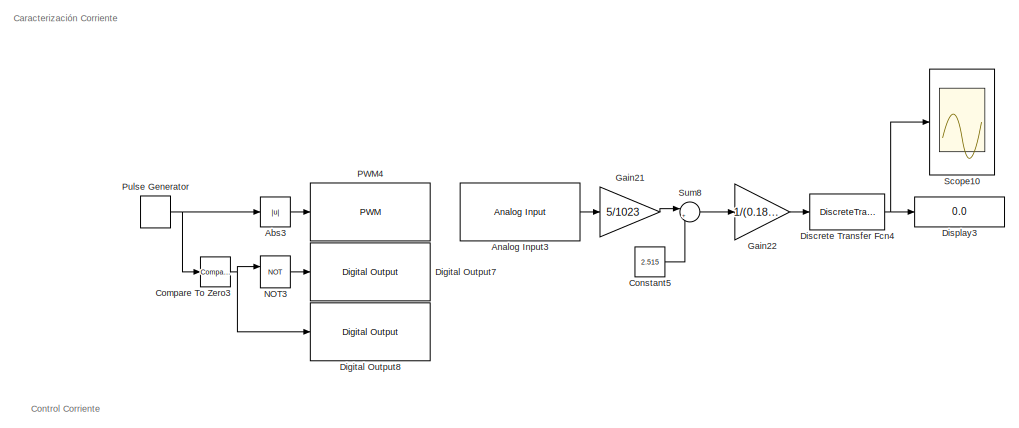
[diagram: root canvas - part 1/5, top left region]
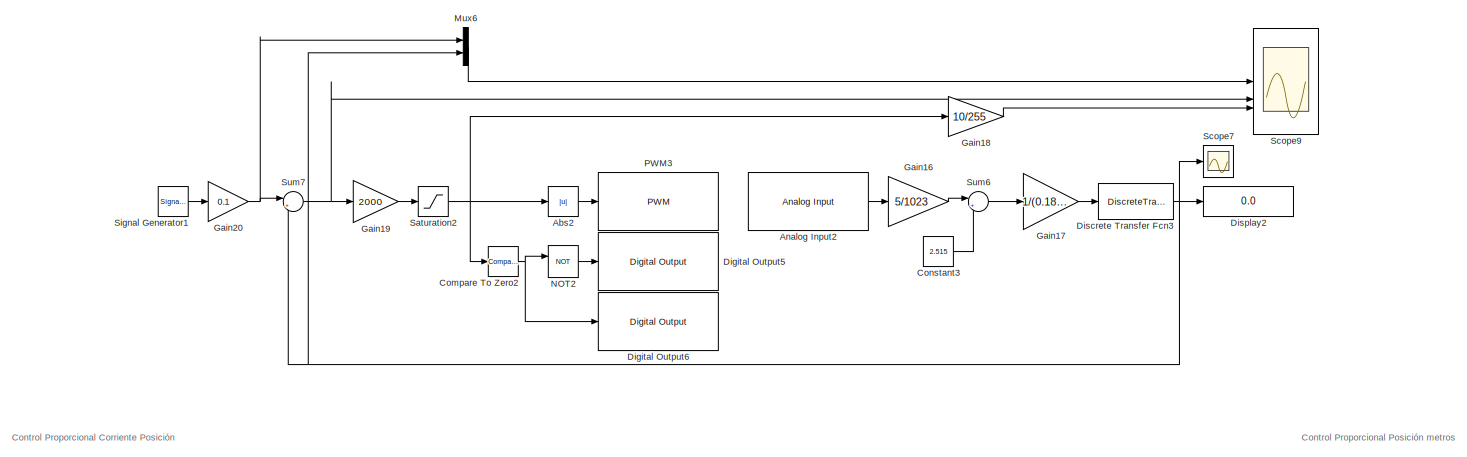
[diagram: root canvas - part 2/5, top left region]
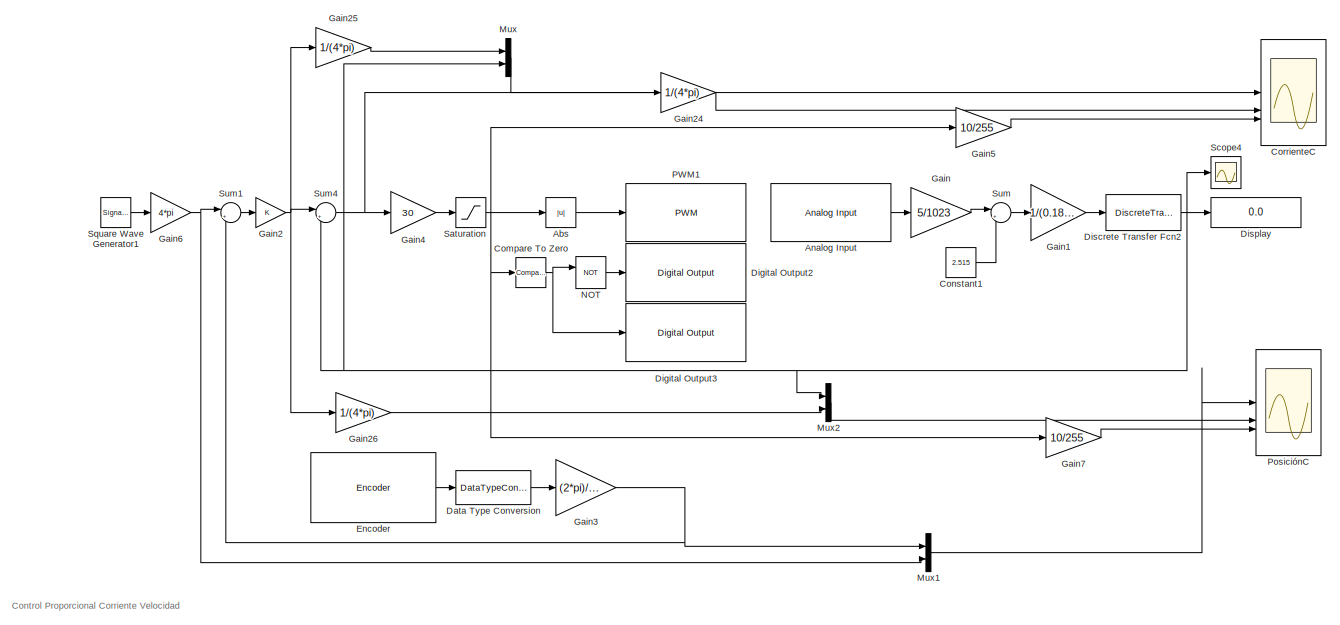
[diagram: root canvas - part 3/5, middle left region]
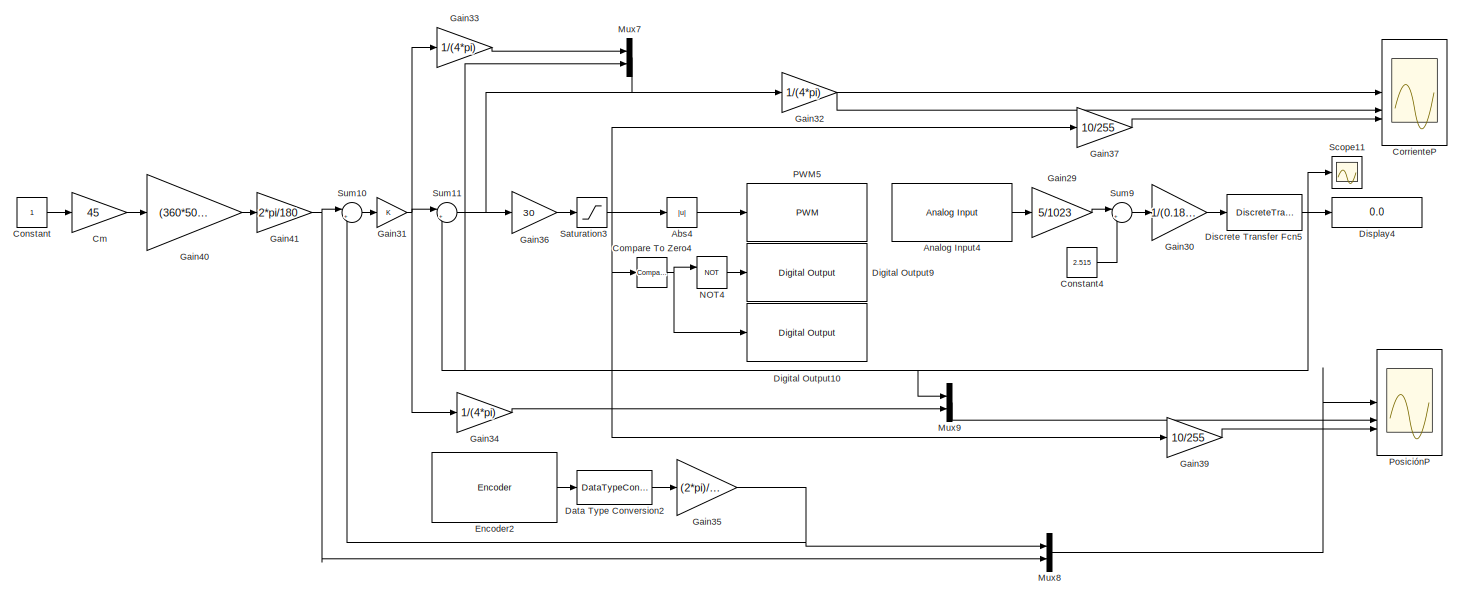
[diagram: root canvas - part 4/5, middle right region]
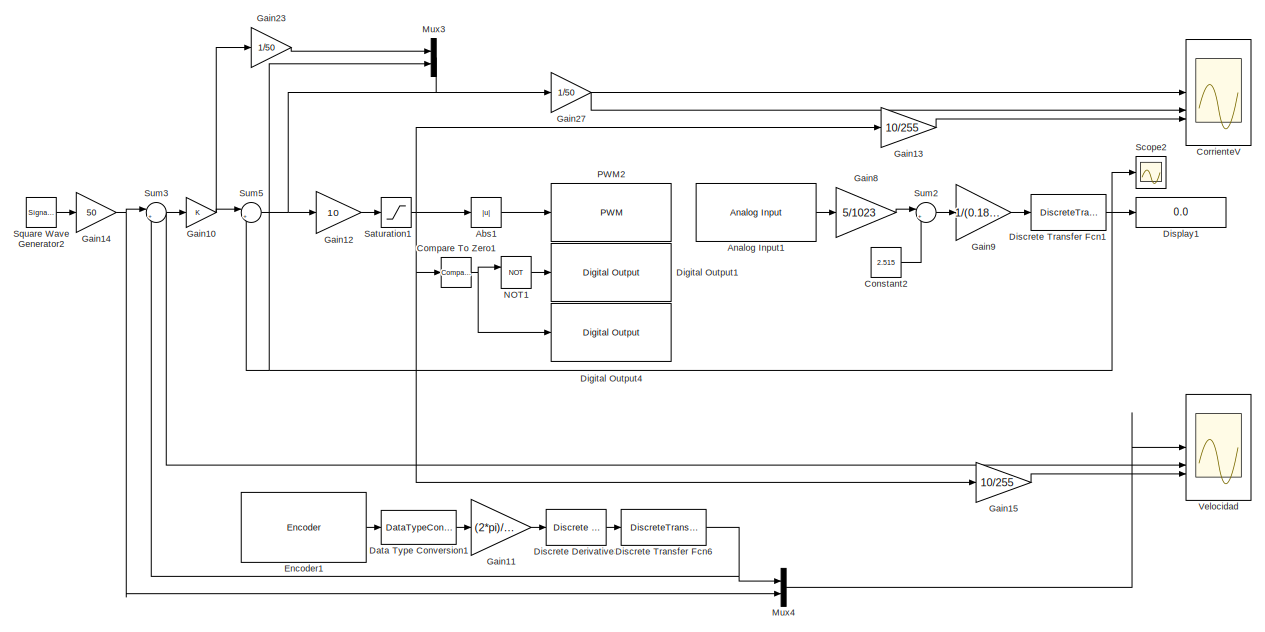
[diagram: root canvas - part 5/5, bottom left region]
MODEL slx_dbfee14ff2af
KIND model
CONFIG AbsTol = auto
CONFIG EnableMultiTasking = on
CONFIG FixedStep = 0.001
CONFIG MaxStep = auto
CONFIG MinStep = auto
CONFIG RelTol = 1e-3
CONFIG SampleTimeConstraint = Unconstrained
CONFIG SolverName = FixedStepDiscrete
CONFIG StartTime = 0.0
CONFIG StopTime = inf
BLOCK [Abs] Abs
  Commented = on
  SaturateOnIntegerOverflow = off
BLOCK [Abs] Abs1
  Commented = on
  SaturateOnIntegerOverflow = off
BLOCK [Abs] Abs2
  Commented = on
  SaturateOnIntegerOverflow = off
BLOCK [Abs] Abs3
  Commented = on
  SaturateOnIntegerOverflow = off
BLOCK [Abs] Abs4
  SaturateOnIntegerOverflow = off
BLOCK [Reference] Analog Input  REF=arduinolib/Analog Input
  Commented = on
  SourceBlock = arduinolib/Analog Input
  SourceType = Arduino Analog Input
BLOCK [Reference] Analog Input1  REF=arduinolib/Analog Input
  Commented = on
  SourceBlock = arduinolib/Analog Input
  SourceType = Arduino Analog Input
BLOCK [Reference] Analog Input2  REF=arduinolib/Analog Input
  Commented = on
  SourceBlock = arduinolib/Analog Input
  SourceType = Arduino Analog Input
BLOCK [Reference] Analog Input3  REF=arduinolib/Analog Input
  Commented = on
  SourceBlock = arduinolib/Analog Input
  SourceType = Arduino Analog Input
BLOCK [Reference] Analog Input4  REF=arduinolib/Analog Input
  SourceBlock = arduinolib/Analog Input
  SourceType = Arduino Analog Input
BLOCK [Gain] Cm
  Gain = 45
BLOCK [Reference] Compare To Zero  REF=simulink/Logic and Bit
Operations/Compare
To Zero
  Commented = on
  SourceBlock = simulink/Logic and Bit\nOperations/Compare\nTo Zero
  SourceType = Compare To Zero
BLOCK [Reference] Compare To Zero1  REF=simulink/Logic and Bit
Operations/Compare
To Zero
  Commented = on
  SourceBlock = simulink/Logic and Bit\nOperations/Compare\nTo Zero
  SourceType = Compare To Zero
BLOCK [Reference] Compare To Zero2  REF=simulink/Logic and Bit
Operations/Compare
To Zero
  Commented = on
  SourceBlock = simulink/Logic and Bit\nOperations/Compare\nTo Zero
  SourceType = Compare To Zero
BLOCK [Reference] Compare To Zero3  REF=simulink/Logic and Bit
Operations/Compare
To Zero
  Commented = on
  SourceBlock = simulink/Logic and Bit\nOperations/Compare\nTo Zero
  SourceType = Compare To Zero
BLOCK [Reference] Compare To Zero4  REF=simulink/Logic and Bit
Operations/Compare
To Zero
  SourceBlock = simulink/Logic and Bit\nOperations/Compare\nTo Zero
  SourceType = Compare To Zero
BLOCK [Constant] Constant
BLOCK [Constant] Constant1
  Commented = on
  Value = 2.515
BLOCK [Constant] Constant2
  Commented = on
  Value = 2.515
BLOCK [Constant] Constant3
  Commented = on
  Value = 2.515
BLOCK [Constant] Constant4
  Value = 2.515
BLOCK [Constant] Constant5
  Commented = on
  Value = 2.515
BLOCK [Scope] CorrienteC
  Commented = on
  Floating = off
  NumInputPorts = 3
  ScopeSpecificationString = Simulink.scopes.TimeScopeBlockCfg('CurrentConfiguration', extmgr.ConfigurationSet(extmgr.Configuration('Core','General UI',true,'FigureColor',[1 1 1]),extmgr.Configuration('Core','Source UI',true),extmgr.Configuration('Sources','WiredSimulink',true,'DataLoggingVariableName','ScopeData2','SampleTime','1e-3'),extmgr.Configuration('Visuals','Time Domain',true,'SerializedDisplays',{struct('MinYLimReal...<+3094ch>
BLOCK [Scope] CorrienteP
  Floating = off
  NumInputPorts = 3
  ScopeSpecificationString = Simulink.scopes.TimeScopeBlockCfg('CurrentConfiguration', extmgr.ConfigurationSet(extmgr.Configuration('Core','General UI',true,'FigureColor',[1 1 1]),extmgr.Configuration('Core','Source UI',true),extmgr.Configuration('Sources','WiredSimulink',true,'DataLoggingVariableName','ScopeData2','SampleTime','1e-3'),extmgr.Configuration('Visuals','Time Domain',true,'SerializedDisplays',{struct('MinYLimReal...<+3094ch>
BLOCK [Scope] CorrienteV
  Commented = on
  Floating = off
  NumInputPorts = 3
  ScopeSpecificationString = Simulink.scopes.TimeScopeBlockCfg('CurrentConfiguration', extmgr.ConfigurationSet(extmgr.Configuration('Core','General UI',true,'FigureColor',[1 1 1]),extmgr.Configuration('Core','Source UI',true),extmgr.Configuration('Sources','WiredSimulink',true,'DataLoggingVariableName','ScopeData3','SampleTime','1e-3'),extmgr.Configuration('Visuals','Time Domain',true,'SerializedDisplays',{struct('MinYLimReal...<+3442ch>
BLOCK [DataTypeConversion] Data Type Conversion
  Commented = on
  RndMeth = Floor
  SaturateOnIntegerOverflow = off
BLOCK [DataTypeConversion] Data Type Conversion1
  Commented = on
  RndMeth = Floor
  SaturateOnIntegerOverflow = off
BLOCK [DataTypeConversion] Data Type Conversion2
  RndMeth = Floor
  SaturateOnIntegerOverflow = off
BLOCK [Reference] Digital Output1  REF=arduinolib/Digital Output
  Commented = on
  SourceBlock = arduinolib/Digital Output
  SourceType = Arduino Digital Output
BLOCK [Reference] Digital Output10  REF=arduinolib/Digital Output
  SourceBlock = arduinolib/Digital Output
  SourceType = Arduino Digital Output
BLOCK [Reference] Digital Output2  REF=arduinolib/Digital Output
  Commented = on
  SourceBlock = arduinolib/Digital Output
  SourceType = Arduino Digital Output
BLOCK [Reference] Digital Output3  REF=arduinolib/Digital Output
  Commented = on
  SourceBlock = arduinolib/Digital Output
  SourceType = Arduino Digital Output
BLOCK [Reference] Digital Output4  REF=arduinolib/Digital Output
  Commented = on
  SourceBlock = arduinolib/Digital Output
  SourceType = Arduino Digital Output
BLOCK [Reference] Digital Output5  REF=arduinolib/Digital Output
  Commented = on
  SourceBlock = arduinolib/Digital Output
  SourceType = Arduino Digital Output
BLOCK [Reference] Digital Output6  REF=arduinolib/Digital Output
  Commented = on
  SourceBlock = arduinolib/Digital Output
  SourceType = Arduino Digital Output
BLOCK [Reference] Digital Output7  REF=arduinolib/Digital Output
  Commented = on
  SourceBlock = arduinolib/Digital Output
  SourceType = Arduino Digital Output
BLOCK [Reference] Digital Output8  REF=arduinolib/Digital Output
  Commented = on
  SourceBlock = arduinolib/Digital Output
  SourceType = Arduino Digital Output
BLOCK [Reference] Digital Output9  REF=arduinolib/Digital Output
  SourceBlock = arduinolib/Digital Output
  SourceType = Arduino Digital Output
BLOCK [Reference] Discrete Derivative3  REF=simulink/Discrete/Discrete Derivative
  Commented = on
  SourceBlock = simulink/Discrete/Discrete Derivative
  SourceType = Discrete Derivative
BLOCK [DiscreteTransferFcn] Discrete Transfer Fcn1
  Commented = on
  Denominator = [1 -0.9937]
  InputPortMap = u0
  Numerator = [0.006263]
BLOCK [DiscreteTransferFcn] Discrete Transfer Fcn2
  Commented = on
  Denominator = [1 -0.9937]
  InputPortMap = u0
  Numerator = [0.006263]
BLOCK [DiscreteTransferFcn] Discrete Transfer Fcn3
  Commented = on
  Denominator = [1 -0.9937]
  InputPortMap = u0
  Numerator = [0.006263]
BLOCK [DiscreteTransferFcn] Discrete Transfer Fcn4
  Commented = on
  Denominator = [1 -0.9937]
  InputPortMap = u0
  Numerator = [0.006263]
BLOCK [DiscreteTransferFcn] Discrete Transfer Fcn5
  Denominator = [1 -0.9937]
  InputPortMap = u0
  Numerator = [0.006263]
BLOCK [DiscreteTransferFcn] Discrete Transfer Fcn6
  Commented = on
  Denominator = [1 -0.997]
  InputPortMap = u0
  Numerator = [0.003137]
BLOCK [Display] Display
  Commented = on
  Decimation = 1
BLOCK [Display] Display1
  Commented = on
  Decimation = 1
BLOCK [Display] Display2
  Commented = on
  Decimation = 1
BLOCK [Display] Display3
  Commented = on
  Decimation = 1
BLOCK [Display] Display4
  Decimation = 1
BLOCK [Reference] Encoder  REF=arduinosensorlib/Encoder
  Commented = on
  SourceBlock = arduinosensorlib/Encoder
  SourceType = Arduino Rotary Encoder
BLOCK [Reference] Encoder1  REF=arduinosensorlib/Encoder
  Commented = on
  SourceBlock = arduinosensorlib/Encoder
  SourceType = Arduino Rotary Encoder
BLOCK [Reference] Encoder2  REF=arduinosensorlib/Encoder
  SourceBlock = arduinosensorlib/Encoder
  SourceType = Arduino Rotary Encoder
BLOCK [Gain] Gain
  Commented = on
  Gain = 5/1023
BLOCK [Gain] Gain1
  Commented = on
  Gain = 1/(0.185)
BLOCK [Gain] Gain10
  Commented = on
BLOCK [Gain] Gain11
  Commented = on
  Gain = (2*pi)/102
BLOCK [Gain] Gain12
  Commented = on
  Gain = 10
BLOCK [Gain] Gain13
  Commented = on
  Gain = 10/255
BLOCK [Gain] Gain14
  Commented = on
  Gain = 50
BLOCK [Gain] Gain15
  Commented = on
  Gain = 10/255
BLOCK [Gain] Gain16
  Commented = on
  Gain = 5/1023
BLOCK [Gain] Gain17
  Commented = on
  Gain = 1/(0.185)
BLOCK [Gain] Gain18
  Commented = on
  Gain = 10/255
BLOCK [Gain] Gain19
  Commented = on
  Gain = 2000
BLOCK [Gain] Gain2
  Commented = on
BLOCK [Gain] Gain20
  Commented = on
  Gain = 0.1
BLOCK [Gain] Gain21
  Commented = on
  Gain = 5/1023
BLOCK [Gain] Gain22
  Commented = on
  Gain = 1/(0.185)
BLOCK [Gain] Gain23
  Commented = on
  Gain = 1/50
BLOCK [Gain] Gain24
  Commented = on
  Gain = 1/(4*pi)
BLOCK [Gain] Gain25
  Commented = on
  Gain = 1/(4*pi)
BLOCK [Gain] Gain26
  Commented = on
  Gain = 1/(4*pi)
BLOCK [Gain] Gain27
  Commented = on
  Gain = 1/50
BLOCK [Gain] Gain29
  Gain = 5/1023
BLOCK [Gain] Gain3
  Commented = on
  Gain = (2*pi)/102
BLOCK [Gain] Gain30
  Gain = 1/(0.185)
BLOCK [Gain] Gain31
BLOCK [Gain] Gain32
  Gain = 1/(4*pi)
BLOCK [Gain] Gain33
  Gain = 1/(4*pi)
BLOCK [Gain] Gain34
  Gain = 1/(4*pi)
BLOCK [Gain] Gain35
  Gain = (2*pi)/(102)
BLOCK [Gain] Gain36
  Gain = 30
BLOCK [Gain] Gain37
  Gain = 10/255
BLOCK [Gain] Gain39
  Gain = 10/255
BLOCK [Gain] Gain4
  Commented = on
  Gain = 30
BLOCK [Gain] Gain40
  Gain = (360*50)/(2*pi*0.4*53.5)
BLOCK [Gain] Gain41
  Gain = 2*pi/180
BLOCK [Gain] Gain5
  Commented = on
  Gain = 10/255
BLOCK [Gain] Gain6
  Commented = on
  Gain = 4*pi
BLOCK [Gain] Gain7
  Commented = on
  Gain = 10/255
BLOCK [Gain] Gain8
  Commented = on
  Gain = 5/1023
BLOCK [Gain] Gain9
  Commented = on
  Gain = 1/(0.185)
BLOCK [Mux] Mux
  Commented = on
  DisplayOption = bar
  Inputs = 2
BLOCK [Mux] Mux1
  Commented = on
  DisplayOption = bar
  Inputs = 2
BLOCK [Mux] Mux2
  Commented = on
  DisplayOption = bar
  Inputs = 2
BLOCK [Mux] Mux3
  Commented = on
  DisplayOption = bar
  Inputs = 2
BLOCK [Mux] Mux4
  Commented = on
  DisplayOption = bar
  Inputs = 2
BLOCK [Mux] Mux6
  Commented = on
  DisplayOption = bar
  Inputs = 2
BLOCK [Mux] Mux7
  DisplayOption = bar
  Inputs = 2
BLOCK [Mux] Mux8
  DisplayOption = bar
  Inputs = 2
BLOCK [Mux] Mux9
  DisplayOption = bar
  Inputs = 2
BLOCK [Logic] NOT
  AllPortsSameDT = off
  Commented = on
  IconShape = distinctive
  Operator = NOT
  OutDataTypeStr = boolean
BLOCK [Logic] NOT1
  AllPortsSameDT = off
  Commented = on
  IconShape = distinctive
  Operator = NOT
  OutDataTypeStr = boolean
BLOCK [Logic] NOT2
  AllPortsSameDT = off
  Commented = on
  IconShape = distinctive
  Operator = NOT
  OutDataTypeStr = boolean
BLOCK [Logic] NOT3
  AllPortsSameDT = off
  Commented = on
  IconShape = distinctive
  Operator = NOT
  OutDataTypeStr = boolean
BLOCK [Logic] NOT4
  AllPortsSameDT = off
  IconShape = distinctive
  Operator = NOT
  OutDataTypeStr = boolean
BLOCK [Reference] PWM1  REF=arduinolib/PWM
  Commented = on
  SourceBlock = arduinolib/PWM
  SourceType = Arduino PWM
BLOCK [Reference] PWM2  REF=arduinolib/PWM
  Commented = on
  SourceBlock = arduinolib/PWM
  SourceType = Arduino PWM
BLOCK [Reference] PWM3  REF=arduinolib/PWM
  Commented = on
  SourceBlock = arduinolib/PWM
  SourceType = Arduino PWM
BLOCK [Reference] PWM4  REF=arduinolib/PWM
  Commented = on
  SourceBlock = arduinolib/PWM
  SourceType = Arduino PWM
BLOCK [Reference] PWM5  REF=arduinolib/PWM
  SourceBlock = arduinolib/PWM
  SourceType = Arduino PWM
BLOCK [Scope] PosiciónC
  Commented = on
  Floating = off
  NumInputPorts = 3
  ScopeSpecificationString = Simulink.scopes.TimeScopeBlockCfg('CurrentConfiguration', extmgr.ConfigurationSet(extmgr.Configuration('Core','General UI',true,'FigureColor',[1 1 1]),extmgr.Configuration('Core','Source UI',true),extmgr.Configuration('Sources','WiredSimulink',true,'DataLoggingVariableName','ScopeData1','SampleTime','1e-3'),extmgr.Configuration('Visuals','Time Domain',true,'SerializedDisplays',{struct('MinYLimReal...<+3105ch>
BLOCK [Scope] PosiciónP
  Floating = off
  NumInputPorts = 3
  ScopeSpecificationString = Simulink.scopes.TimeScopeBlockCfg('CurrentConfiguration', extmgr.ConfigurationSet(extmgr.Configuration('Core','General UI',true,'FigureColor',[1 1 1]),extmgr.Configuration('Core','Source UI',true),extmgr.Configuration('Sources','WiredSimulink',true,'DataLoggingVariableName','ScopeData3','SampleTime','1e-3'),extmgr.Configuration('Visuals','Time Domain',true,'SerializedDisplays',{struct('MinYLimReal...<+3144ch>
BLOCK [DiscretePulseGenerator] Pulse Generator
  Amplitude = 255
  Commented = on
  Period = 10
  PulseType = Time based
  PulseWidth = 50
BLOCK [Saturate] Saturation
  Commented = on
  LowerLimit = -255
  UpperLimit = 255
BLOCK [Saturate] Saturation1
  Commented = on
  LowerLimit = -255
  UpperLimit = 255
BLOCK [Saturate] Saturation2
  Commented = on
  LowerLimit = -255
  UpperLimit = 255
BLOCK [Saturate] Saturation3
  LowerLimit = -255
  UpperLimit = 255
BLOCK [Scope] Scope10
  Commented = on
  Floating = off
  NumInputPorts = 1
  ScopeSpecificationString = Simulink.scopes.TimeScopeBlockCfg('CurrentConfiguration', extmgr.ConfigurationSet(extmgr.Configuration('Core','General UI',true,'FigureColor',[1 1 1]),extmgr.Configuration('Core','Source UI',true),extmgr.Configuration('Sources','WiredSimulink',true,'DataLoggingVariableName','ScopeData1','SampleTime','1e-3'),extmgr.Configuration('Visuals','Time Domain',true,'SerializedDisplays',{struct('MinYLimReal...<+2161ch>
BLOCK [Scope] Scope11
  Floating = off
  NumInputPorts = 1
  ScopeSpecificationString = Simulink.scopes.TimeScopeBlockCfg('CurrentConfiguration', extmgr.ConfigurationSet(extmgr.Configuration('Core','General UI',true,'FigureColor',[1 1 1]),extmgr.Configuration('Core','Source UI',true),extmgr.Configuration('Sources','WiredSimulink',true,'DataLoggingVariableName','ScopeData1'),extmgr.Configuration('Visuals','Time Domain',true,'SerializedDisplays',{struct('MinYLimReal','-0.55606','MaxYLi...<+1616ch>
BLOCK [Scope] Scope2
  Commented = on
  Floating = off
  NumInputPorts = 1
  ScopeSpecificationString = Simulink.scopes.TimeScopeBlockCfg('CurrentConfiguration', extmgr.ConfigurationSet(extmgr.Configuration('Core','General UI',true,'FigureColor',[1 1 1]),extmgr.Configuration('Core','Source UI',true),extmgr.Configuration('Sources','WiredSimulink',true,'DataLoggingVariableName','ScopeData2'),extmgr.Configuration('Visuals','Time Domain',true,'SerializedDisplays',{struct('MinYLimReal','-0.72333','MaxYLi...<+1603ch>
BLOCK [Scope] Scope4
  Commented = on
  Floating = off
  NumInputPorts = 1
  ScopeSpecificationString = Simulink.scopes.TimeScopeBlockCfg('CurrentConfiguration', extmgr.ConfigurationSet(extmgr.Configuration('Core','General UI',true,'FigureColor',[1 1 1]),extmgr.Configuration('Core','Source UI',true),extmgr.Configuration('Sources','WiredSimulink',true,'DataLoggingVariableName','ScopeData1'),extmgr.Configuration('Visuals','Time Domain',true,'SerializedDisplays',{struct('MinYLimReal','-0.55606','MaxYLi...<+1616ch>
BLOCK [Scope] Scope7
  Commented = on
  Floating = off
  NumInputPorts = 1
  ScopeSpecificationString = Simulink.scopes.TimeScopeBlockCfg('CurrentConfiguration', extmgr.ConfigurationSet(extmgr.Configuration('Core','General UI',true),extmgr.Configuration('Core','Source UI',true),extmgr.Configuration('Sources','WiredSimulink',true,'DataLoggingVariableName','ScopeData6'),extmgr.Configuration('Visuals','Time Domain',true,'SerializedDisplays',{struct('MinYLimReal','-0.08847','MaxYLimReal','0.02521','YLab...<+1413ch>
BLOCK [Scope] Scope9
  Commented = on
  Floating = off
  NumInputPorts = 3
  ScopeSpecificationString = Simulink.scopes.TimeScopeBlockCfg('CurrentConfiguration', extmgr.ConfigurationSet(extmgr.Configuration('Core','General UI',true,'FigureColor',[1 1 1]),extmgr.Configuration('Core','Source UI',true),extmgr.Configuration('Sources','WiredSimulink',true,'DataLoggingVariableName','ScopeData7','SampleTime','1e-3'),extmgr.Configuration('Visuals','Time Domain',true,'SerializedDisplays',{struct('MinYLimReal...<+3597ch>
BLOCK [SignalGenerator] Signal Generator1
  Commented = on
  Frequency = 0.1
  WaveForm = square
BLOCK [SignalGenerator] Square Wave Generator1
  Commented = on
  Frequency = 0.1
  WaveForm = square
BLOCK [SignalGenerator] Square Wave Generator2
  Commented = on
  Frequency = 0.1
  WaveForm = square
BLOCK [Sum] Sum
  Commented = on
  Inputs = |+-
BLOCK [Sum] Sum1
  Commented = on
  Inputs = |+-
BLOCK [Sum] Sum10
  Inputs = |+-
BLOCK [Sum] Sum11
  Inputs = |+-
BLOCK [Sum] Sum2
  Commented = on
  Inputs = |+-
BLOCK [Sum] Sum3
  Commented = on
  Inputs = |+-
BLOCK [Sum] Sum4
  Commented = on
  Inputs = |+-
BLOCK [Sum] Sum5
  Commented = on
  Inputs = |+-
BLOCK [Sum] Sum6
  Commented = on
  Inputs = |+-
BLOCK [Sum] Sum7
  Commented = on
  Inputs = |+-
BLOCK [Sum] Sum8
  Commented = on
  Inputs = |+-
BLOCK [Sum] Sum9
  Inputs = |+-
BLOCK [Scope] Velocidad
  Commented = on
  Floating = off
  NumInputPorts = 3
  ScopeSpecificationString = Simulink.scopes.TimeScopeBlockCfg('CurrentConfiguration', extmgr.ConfigurationSet(extmgr.Configuration('Core','General UI',true,'FigureColor',[1 1 1]),extmgr.Configuration('Core','Source UI',true),extmgr.Configuration('Sources','WiredSimulink',true,'DataLoggingVariableName','ScopeData4','SampleTime','1e-3'),extmgr.Configuration('Visuals','Time Domain',true,'SerializedDisplays',{struct('MinYLimReal...<+3447ch>
ANNOTATION (root): Caracterización Corriente
ANNOTATION (root): Control Corriente
ANNOTATION (root): Control Proporcional Corriente Posición
ANNOTATION (root): Control Proporcional Corriente Velocidad
ANNOTATION (root): Control Proporcional Posición metros
LINE Abs1:1 -> PWM2:1
LINE Abs2:1 -> PWM3:1
LINE Abs3:1 -> PWM4:1
LINE Abs4:1 -> PWM5:1
LINE Abs:1 -> PWM1:1
LINE Analog Input1:1 -> Gain8:1
LINE Analog Input2:1 -> Gain16:1
LINE Analog Input3:1 -> Gain21:1
LINE Analog Input4:1 -> Gain29:1
LINE Analog Input:1 -> Gain:1
LINE Cm:1 -> Gain40:1
NET Compare To Zero1:1 -> Digital Output4:1, NOT1:1
NET Compare To Zero2:1 -> Digital Output6:1, NOT2:1
NET Compare To Zero3:1 -> Digital Output8:1, NOT3:1
NET Compare To Zero4:1 -> Digital Output10:1, NOT4:1
NET Compare To Zero:1 -> Digital Output3:1, NOT:1
LINE Constant1:1 -> Sum:2
LINE Constant2:1 -> Sum2:2
LINE Constant3:1 -> Sum6:2
LINE Constant4:1 -> Sum9:2
LINE Constant5:1 -> Sum8:2
LINE Constant:1 -> Cm:1
LINE Data Type Conversion1:1 -> Gain11:1
LINE Data Type Conversion2:1 -> Gain35:1
LINE Data Type Conversion:1 -> Gain3:1
LINE Discrete Derivative3:1 -> Discrete Transfer Fcn6:1
NET Discrete Transfer Fcn1:1 -> Display1:1, Mux3:2, Scope2:1, Sum5:2
NET Discrete Transfer Fcn2:1 -> Display:1, Mux2:1, Mux:2, Scope4:1, Sum4:2
NET Discrete Transfer Fcn3:1 -> Display2:1, Mux6:2, Scope7:1, Sum7:2
NET Discrete Transfer Fcn4:1 -> Display3:1, Scope10:1
NET Discrete Transfer Fcn5:1 -> Display4:1, Mux7:2, Mux9:1, Scope11:1, Sum11:2
NET Discrete Transfer Fcn6:1 -> Mux4:1, Sum3:2
LINE Encoder1:1 -> Data Type Conversion1:1
LINE Encoder2:1 -> Data Type Conversion2:1
LINE Encoder:1 -> Data Type Conversion:1
NET Gain10:1 -> Gain23:1, Sum5:1
LINE Gain11:1 -> Discrete Derivative3:1
LINE Gain12:1 -> Saturation1:1
LINE Gain13:1 -> CorrienteV:3
NET Gain14:1 -> Mux4:2, Sum3:1
LINE Gain15:1 -> Velocidad:3
LINE Gain16:1 -> Sum6:1
LINE Gain17:1 -> Discrete Transfer Fcn3:1
LINE Gain18:1 -> Scope9:3
LINE Gain19:1 -> Saturation2:1
LINE Gain1:1 -> Discrete Transfer Fcn2:1
NET Gain20:1 -> Mux6:1, Sum7:1
LINE Gain21:1 -> Sum8:1
LINE Gain22:1 -> Discrete Transfer Fcn4:1
LINE Gain23:1 -> Mux3:1
LINE Gain24:1 -> CorrienteC:2
LINE Gain25:1 -> Mux:1
LINE Gain26:1 -> Mux2:2
LINE Gain27:1 -> CorrienteV:2
LINE Gain29:1 -> Sum9:1
NET Gain2:1 -> Gain25:1, Gain26:1, Sum4:1
LINE Gain30:1 -> Discrete Transfer Fcn5:1
NET Gain31:1 -> Gain33:1, Gain34:1, Sum11:1
LINE Gain32:1 -> CorrienteP:2
LINE Gain33:1 -> Mux7:1
LINE Gain34:1 -> Mux9:2
NET Gain35:1 -> Mux8:1, Sum10:2
LINE Gain36:1 -> Saturation3:1
LINE Gain37:1 -> CorrienteP:3
LINE Gain39:1 -> PosiciónP:3
NET Gain3:1 -> Mux1:1, Sum1:2
LINE Gain40:1 -> Gain41:1
NET Gain41:1 -> Mux8:2, Sum10:1
LINE Gain4:1 -> Saturation:1
LINE Gain5:1 -> CorrienteC:3
NET Gain6:1 -> Mux1:2, Sum1:1
LINE Gain7:1 -> PosiciónC:3
LINE Gain8:1 -> Sum2:1
LINE Gain9:1 -> Discrete Transfer Fcn1:1
LINE Gain:1 -> Sum:1
LINE Mux1:1 -> PosiciónC:1
LINE Mux2:1 -> PosiciónC:2
LINE Mux3:1 -> CorrienteV:1
LINE Mux4:1 -> Velocidad:1
LINE Mux6:1 -> Scope9:1
LINE Mux7:1 -> CorrienteP:1
LINE Mux8:1 -> PosiciónP:1
LINE Mux9:1 -> PosiciónP:2
LINE Mux:1 -> CorrienteC:1
LINE NOT1:1 -> Digital Output1:1
LINE NOT2:1 -> Digital Output5:1
LINE NOT3:1 -> Digital Output7:1
LINE NOT4:1 -> Digital Output9:1
LINE NOT:1 -> Digital Output2:1
NET Pulse Generator:1 -> Abs3:1, Compare To Zero3:1
NET Saturation1:1 -> Abs1:1, Compare To Zero1:1, Gain13:1, Gain15:1
NET Saturation2:1 -> Abs2:1, Compare To Zero2:1, Gain18:1
NET Saturation3:1 -> Abs4:1, Compare To Zero4:1, Gain37:1, Gain39:1
NET Saturation:1 -> Abs:1, Compare To Zero:1, Gain5:1, Gain7:1
LINE Signal Generator1:1 -> Gain20:1
LINE Square Wave Generator1:1 -> Gain6:1
LINE Square Wave Generator2:1 -> Gain14:1
LINE Sum10:1 -> Gain31:1
NET Sum11:1 -> Gain32:1, Gain36:1
LINE Sum1:1 -> Gain2:1
LINE Sum2:1 -> Gain9:1
NET Sum3:1 -> Gain10:1, Velocidad:2
NET Sum4:1 -> Gain24:1, Gain4:1
NET Sum5:1 -> Gain12:1, Gain27:1
LINE Sum6:1 -> Gain17:1
NET Sum7:1 -> Gain19:1, Scope9:2
LINE Sum8:1 -> Gain22:1
LINE Sum9:1 -> Gain30:1
LINE Sum:1 -> Gain1:1
note: NET lines group one-source signal fan-out (src -> all destinations, sorted); 1:1 wires keep LINE
